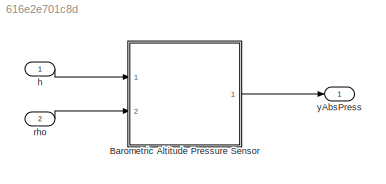
MODEL slx_616e2e701c8d
KIND model
CONFIG AbsTol = auto
CONFIG EnableMultiTasking = off
CONFIG FixedStep = auto
CONFIG MaxStep = auto
CONFIG MinStep = auto
CONFIG RelTol = 1e-3
CONFIG SampleTimeConstraint = Unconstrained
CONFIG Solver = VariableStepAuto
CONFIG SolverName = VariableStepAuto
CONFIG StartTime = 0.0
CONFIG StopTime = 10.0
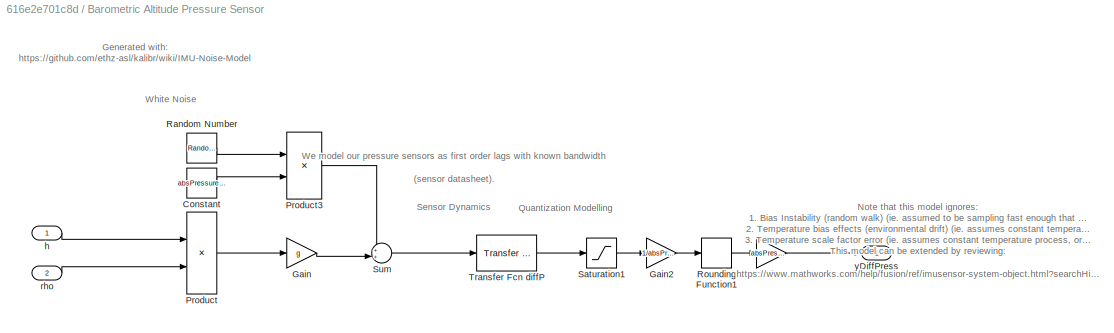
BLOCK [SubSystem] Barometric Altitude Pressure Sensor
  Ports = [2, 1]
  RequestExecContextInheritance = off
BLOCK [Constant] Barometric Altitude Pressure Sensor/Constant
  Value = absPressureNoiseDensity*(1/sqrt(SampleTime))
BLOCK [Gain] Barometric Altitude Pressure Sensor/Gain
  Gain = g
  OutDataTypeStr = Inherit: Inherit via internal rule
  ParamDataTypeStr = Inherit: Inherit via internal rule
  SaturateOnIntegerOverflow = off
BLOCK [Gain] Barometric Altitude Pressure Sensor/Gain2
  Gain = 1/absPressureResolution
  OutDataTypeStr = Inherit: Inherit via internal rule
  ParamDataTypeStr = Inherit: Inherit via internal rule
  SaturateOnIntegerOverflow = off
BLOCK [Gain] Barometric Altitude Pressure Sensor/Gain3
  Gain = absPressureResolution
  OutDataTypeStr = Inherit: Inherit via internal rule
  ParamDataTypeStr = Inherit: Inherit via internal rule
  SaturateOnIntegerOverflow = off
BLOCK [Product] Barometric Altitude Pressure Sensor/Product
  InputSameDT = off
  OutDataTypeStr = Inherit: Inherit via internal rule
  Ports = [2, 1]
  RndMeth = Floor
  SaturateOnIntegerOverflow = off
BLOCK [Product] Barometric Altitude Pressure Sensor/Product3
  InputSameDT = off
  OutDataTypeStr = Inherit: Inherit via internal rule
  Ports = [2, 1]
  RndMeth = Floor
  SaturateOnIntegerOverflow = off
BLOCK [RandomNumber] Barometric Altitude Pressure Sensor/Random Number
  SampleTime = SampleTime
BLOCK [Rounding] Barometric Altitude Pressure Sensor/Rounding Function1
BLOCK [Saturate] Barometric Altitude Pressure Sensor/Saturation1
  InputPortMap = u0
  LowerLimit = absPressureLowerSaturation
  Ports = [1, 1]
  UpperLimit = absPressureUpperSaturation
BLOCK [Sum] Barometric Altitude Pressure Sensor/Sum
  IconShape = round
  InputSameDT = off
  Inputs = ++|
  OutDataTypeStr = Inherit: Inherit via internal rule
  Ports = [2, 1]
  SaturateOnIntegerOverflow = off
BLOCK [Reference] Barometric Altitude Pressure Sensor/Transfer Fcn diffP  REF=simulink_extras/Additional
Linear/Transfer Fcn
(with initial outputs)
  Ports = [1, 1]
  SourceBlock = simulink_extras/Additional\nLinear/Transfer Fcn\n(with initial outputs)
  SourceProductBaseCode = SL
  SourceProductName = Simulink
  SourceType = Transfer Function with Initial Outputs
BLOCK [Inport] Barometric Altitude Pressure Sensor/h
  IconDisplay = Port number
BLOCK [Inport] Barometric Altitude Pressure Sensor/rho
  IconDisplay = Port number
  Port = 2
BLOCK [Outport] Barometric Altitude Pressure Sensor/yDiffPress
  IconDisplay = Port number
BLOCK [Inport] h
  IconDisplay = Port number
BLOCK [Inport] rho
  IconDisplay = Port number
  Port = 2
BLOCK [Outport] yAbsPress
  IconDisplay = Port number
ANNOTATION Barometric Altitude Pressure Sensor: Note that this model ignores: 1. Bias Instability (random walk) (ie. assumed to be sampling fast enough that this isn't the dominant noise) 2. Temperature bias effects (environmental drift) (ie. assumes constant temperature process, or adjusted for independently) 3. Temperature scale factor error (ie. assumes constant temperature process, or adjusted for independently) This model can be extended b...<+129ch>
ANNOTATION Barometric Altitude Pressure Sensor: Generated with: https://github.com/ethz-asl/kalibr/wiki/IMU-Noise-Model
ANNOTATION Barometric Altitude Pressure Sensor: Quantization Modelling
ANNOTATION Barometric Altitude Pressure Sensor: Sensor Dynamics
ANNOTATION Barometric Altitude Pressure Sensor: We model our pressure sensors as first order lags with known bandwidth (sensor datasheet).
ANNOTATION Barometric Altitude Pressure Sensor: White Noise
LINE Barometric Altitude Pressure Sensor/Constant:1 -> Barometric Altitude Pressure Sensor/Product3:2
LINE Barometric Altitude Pressure Sensor/Gain2:1 -> Barometric Altitude Pressure Sensor/Rounding Function1:1
LINE Barometric Altitude Pressure Sensor/Gain3:1 -> Barometric Altitude Pressure Sensor/yDiffPress:1
LINE Barometric Altitude Pressure Sensor/Gain:1 -> Barometric Altitude Pressure Sensor/Sum:2
LINE Barometric Altitude Pressure Sensor/Product3:1 -> Barometric Altitude Pressure Sensor/Sum:1
LINE Barometric Altitude Pressure Sensor/Product:1 -> Barometric Altitude Pressure Sensor/Gain:1
LINE Barometric Altitude Pressure Sensor/Random Number:1 -> Barometric Altitude Pressure Sensor/Product3:1
LINE Barometric Altitude Pressure Sensor/Rounding Function1:1 -> Barometric Altitude Pressure Sensor/Gain3:1
LINE Barometric Altitude Pressure Sensor/Saturation1:1 -> Barometric Altitude Pressure Sensor/Gain2:1
LINE Barometric Altitude Pressure Sensor/Sum:1 -> Barometric Altitude Pressure Sensor/Transfer Fcn diffP:1
LINE Barometric Altitude Pressure Sensor/Transfer Fcn diffP:1 -> Barometric Altitude Pressure Sensor/Saturation1:1
LINE Barometric Altitude Pressure Sensor/h:1 -> Barometric Altitude Pressure Sensor/Product:1
LINE Barometric Altitude Pressure Sensor/rho:1 -> Barometric Altitude Pressure Sensor/Product:2
LINE Barometric Altitude Pressure Sensor:1 -> yAbsPress:1
LINE h:1 -> Barometric Altitude Pressure Sensor:1
LINE rho:1 -> Barometric Altitude Pressure Sensor:2
